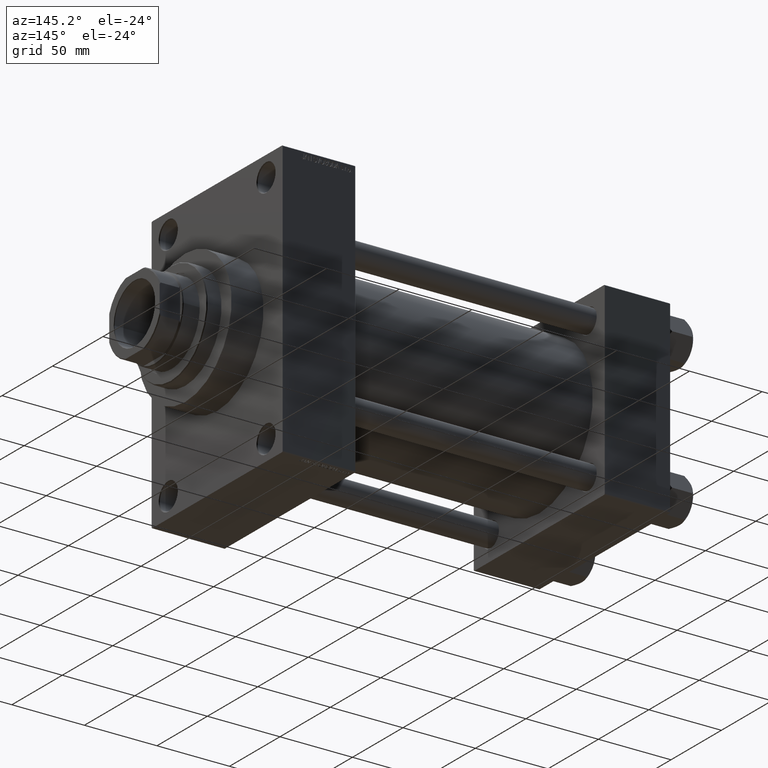
[diagram: clean part render]
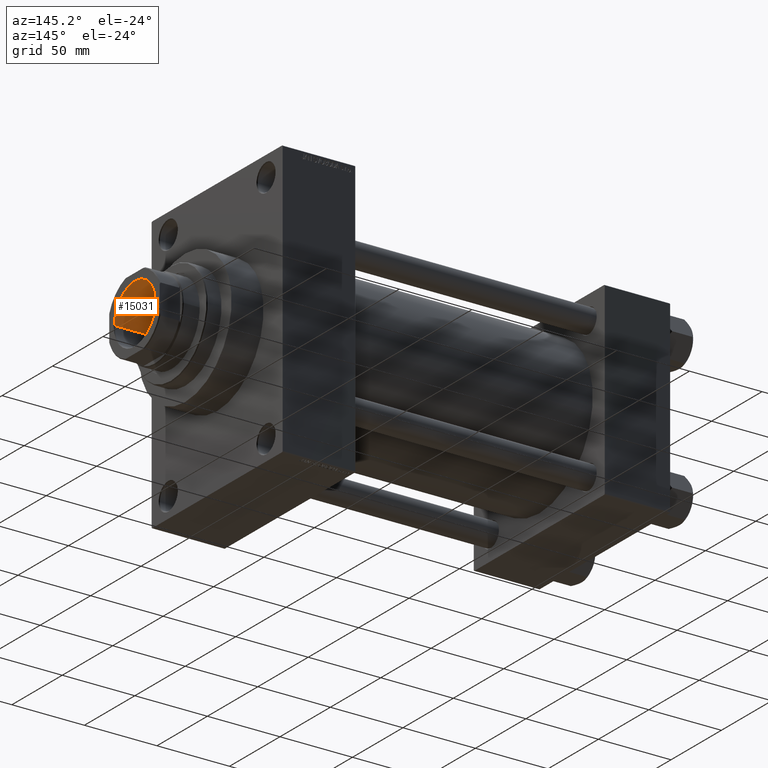
[diagram: same view with one face highlighted and labeled with its STEP entity id]
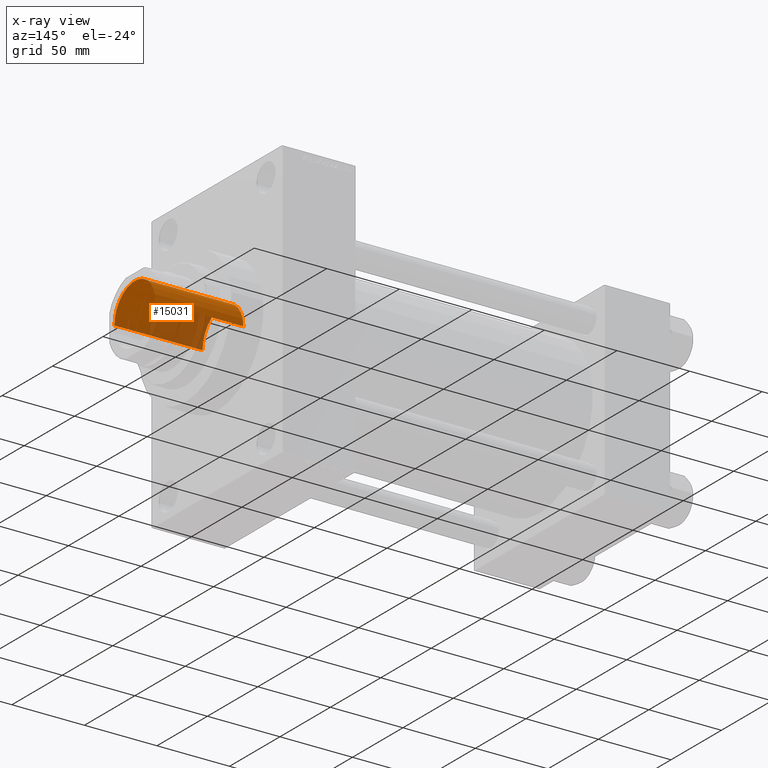
[diagram: x-ray of the same camera — body ghosted, the highlighted face saturated]
A machine part, auxiliary view. The second image highlights one B-rep face of the part: STEP entity #15031.
The next image is the same camera in x-ray: the body ghosted, the highlighted face saturated — about 36% of this face is hidden behind the body in this view.
In plain terms, the highlighted cylindrical surface (edge-blend (fillet) strip) has radius 20.25 mm, axis along (1, 0, 0).
Its self-contained STEP definition (entity closure, byte-faithful):
#33 = AXIS2_PLACEMENT_3D ( 'NONE', #38853, #16854, #13215 ) ;
#2579 = AXIS2_PLACEMENT_3D ( 'NONE', #25260, #32761, #14378 ) ;
#4486 = ORIENTED_EDGE ( 'NONE', *, *, #14111, .F. ) ;
#5237 = VECTOR ( 'NONE', #13116, 1000.000000000000000 ) ;
#6968 = EDGE_LOOP ( 'NONE', ( #4486, #36915, #23817, #37118 ) ) ;
#7065 = CARTESIAN_POINT ( 'NONE',  ( -20.24999999999998934, 2.479909768273389117E-15, 218.0000000000000284 ) ) ;
#7926 = DIRECTION ( 'NONE',  ( 1.000000000000000000, 0.000000000000000000, 0.000000000000000000 ) ) ;
#11538 = CARTESIAN_POINT ( 'NONE',  ( 0.000000000000000000, 0.000000000000000000, 279.0000000000000000 ) ) ;
#12878 = CARTESIAN_POINT ( 'NONE',  ( -20.24999999999999289, 2.479909768273389511E-15, 279.0000000000000000 ) ) ;
#13116 = DIRECTION ( 'NONE',  ( -0.000000000000000000, -0.000000000000000000, 1.000000000000000000 ) ) ;
#13215 = DIRECTION ( 'NONE',  ( 1.000000000000000000, 0.000000000000000000, 0.000000000000000000 ) ) ;
#13352 = LINE ( 'NONE', #12878, #5237 ) ;
#14111 = EDGE_CURVE ( 'NONE', #17835, #16809, #41535, .T. ) ;
#14378 = DIRECTION ( 'NONE',  ( 1.000000000000000000, 0.000000000000000000, 0.000000000000000000 ) ) ;
#14724 = EDGE_CURVE ( 'NONE', #16809, #44807, #22942, .T. ) ;
#14726 = DIRECTION ( 'NONE',  ( -0.000000000000000000, -0.000000000000000000, 1.000000000000000000 ) ) ;
#15031 = ADVANCED_FACE ( 'NONE', ( #44633 ), #26270, .F. ) ;
#16809 = VERTEX_POINT ( 'NONE', #18609 ) ;
#16854 = DIRECTION ( 'NONE',  ( -0.000000000000000000, -0.000000000000000000, 1.000000000000000000 ) ) ;
#17835 = VERTEX_POINT ( 'NONE', #7065 ) ;
#18609 = CARTESIAN_POINT ( 'NONE',  ( 20.24999999999998934, 0.000000000000000000, 218.0000000000000284 ) ) ;
#19005 = DIRECTION ( 'NONE',  ( -0.000000000000000000, -0.000000000000000000, 1.000000000000000000 ) ) ;
#19477 = VERTEX_POINT ( 'NONE', #33041 ) ;
#22397 = AXIS2_PLACEMENT_3D ( 'NONE', #11538, #19005, #7926 ) ;
#22460 = CARTESIAN_POINT ( 'NONE',  ( 20.24999999999999289, 0.000000000000000000, 279.0000000000000000 ) ) ;
#22942 = LINE ( 'NONE', #22460, #40130 ) ;
#23817 = ORIENTED_EDGE ( 'NONE', *, *, #28334, .T. ) ;
#25260 = CARTESIAN_POINT ( 'NONE',  ( 0.000000000000000000, 0.000000000000000000, 278.6999999999998749 ) ) ;
#26270 = CYLINDRICAL_SURFACE ( 'NONE', #22397, 20.24999999999999289 ) ;
#28334 = EDGE_CURVE ( 'NONE', #19477, #44807, #47281, .T. ) ;
#32761 = DIRECTION ( 'NONE',  ( 0.000000000000000000, 0.000000000000000000, 1.000000000000000000 ) ) ;
#33041 = CARTESIAN_POINT ( 'NONE',  ( -20.24999999999999289, 2.479909768273389511E-15, 278.6999999999998749 ) ) ;
#36780 = CARTESIAN_POINT ( 'NONE',  ( 20.24999999999999289, 0.000000000000000000, 278.6999999999998749 ) ) ;
#36915 = ORIENTED_EDGE ( 'NONE', *, *, #38623, .T. ) ;
#37118 = ORIENTED_EDGE ( 'NONE', *, *, #14724, .F. ) ;
#38623 = EDGE_CURVE ( 'NONE', #17835, #19477, #13352, .T. ) ;
#38853 = CARTESIAN_POINT ( 'NONE',  ( 0.000000000000000000, 0.000000000000000000, 218.0000000000000284 ) ) ;
#40130 = VECTOR ( 'NONE', #14726, 1000.000000000000000 ) ;
#41535 = CIRCLE ( 'NONE', #33, 20.24999999999998934 ) ;
#44633 = FACE_OUTER_BOUND ( 'NONE', #6968, .T. ) ;
#44807 = VERTEX_POINT ( 'NONE', #36780 ) ;
#47281 = CIRCLE ( 'NONE', #2579, 20.24999999999999289 ) ;